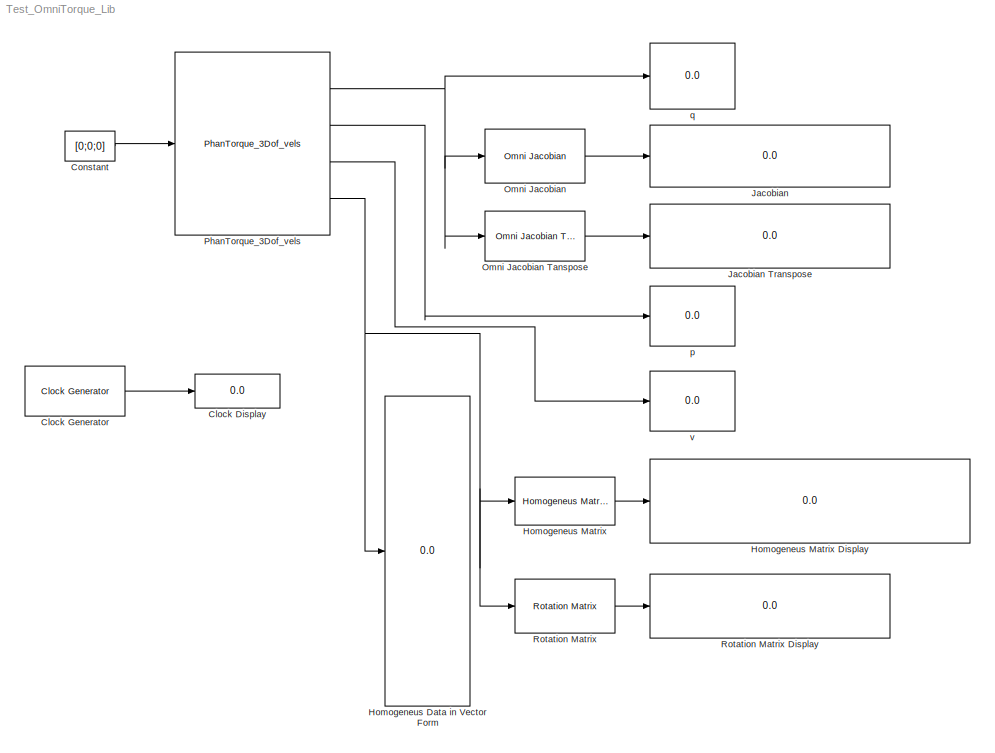
MODEL Test_OmniTorque_Lib
KIND model
BLOCK [Display] Clock Display
  Decimation = 1
  Lockdown = off
  Ports = [1]
  SID = 83
BLOCK [Reference] Clock Generator  REF=PhanTorque_3Dof_Library_32Bits/Clock Generator
  Ports = [0, 1]
  SID = 104
  SourceBlock = PhanTorque_3Dof_Library_32Bits/Clock Generator
BLOCK [Constant] Constant
  SID = 105
  Value = [0;0;0]
BLOCK [Display] Homogeneus Data in Vector Form
  Decimation = 1
  Lockdown = off
  Ports = [1]
  SID = 11
BLOCK [Reference] Homogeneus Matrix  REF=PhanTorque_3Dof_Library_32Bits/Homogeneus Matrix
  FunctionWithSeparateData = off
  GeneratePreprocessorConditionals = off
  Ports = [1, 1]
  RTWMemSecDataConstants = Inherit from model
  RTWMemSecDataInternal = Inherit from model
  RTWMemSecDataParameters = Inherit from model
  RTWMemSecFuncExecute = Inherit from model
  RTWMemSecFuncInitTerm = Inherit from model
  SID = 100
  ShowPortLabels = FromPortIcon
  SourceBlock = PhanTorque_3Dof_Library_32Bits/Homogeneus Matrix
  SystemSampleTime = -1
BLOCK [Display] Homogeneus Matrix Display
  Decimation = 1
  Lockdown = off
  Ports = [1]
  SID = 78
BLOCK [Display] Jacobian
  Decimation = 1
  Lockdown = off
  Ports = [1]
  SID = 70
BLOCK [Display] Jacobian Transpose
  Decimation = 1
  Lockdown = off
  Ports = [1]
  SID = 72
BLOCK [Reference] Omni Jacobian  REF=PhanTorque_3Dof_Library_32Bits/Omni Jacobian
  FunctionWithSeparateData = off
  GeneratePreprocessorConditionals = off
  Ports = [1, 1]
  RTWMemSecDataConstants = Inherit from model
  RTWMemSecDataInternal = Inherit from model
  RTWMemSecDataParameters = Inherit from model
  RTWMemSecFuncExecute = Inherit from model
  RTWMemSecFuncInitTerm = Inherit from model
  SID = 102
  ShowPortLabels = FromPortIcon
  SourceBlock = PhanTorque_3Dof_Library_32Bits/Omni Jacobian
  SystemSampleTime = -1
BLOCK [Reference] Omni Jacobian Tanspose  REF=PhanTorque_3Dof_Library_32Bits/Omni Jacobian Tanspose
  FunctionWithSeparateData = off
  GeneratePreprocessorConditionals = off
  Ports = [1, 1]
  RTWMemSecDataConstants = Inherit from model
  RTWMemSecDataInternal = Inherit from model
  RTWMemSecDataParameters = Inherit from model
  RTWMemSecFuncExecute = Inherit from model
  RTWMemSecFuncInitTerm = Inherit from model
  SID = 103
  ShowPortLabels = FromPortIcon
  SourceBlock = PhanTorque_3Dof_Library_32Bits/Omni Jacobian Tanspose
  SystemSampleTime = -1
BLOCK [Reference] PhanTorque_3Dof_vels  REF=PhanTorque_3Dof_Library_32Bits/PhanTorque_3Dof_vels
  Haptic_Name = 'Default PHANToM'
  Ports = [1, 4]
  SID = 106
  SourceBlock = PhanTorque_3Dof_Library_32Bits/PhanTorque_3Dof_vels
BLOCK [Reference] Rotation Matrix  REF=PhanTorque_3Dof_Library_32Bits/Rotation Matrix
  FunctionWithSeparateData = off
  GeneratePreprocessorConditionals = off
  Ports = [1, 1]
  RTWMemSecDataConstants = Inherit from model
  RTWMemSecDataInternal = Inherit from model
  RTWMemSecDataParameters = Inherit from model
  RTWMemSecFuncExecute = Inherit from model
  RTWMemSecFuncInitTerm = Inherit from model
  SID = 99
  ShowPortLabels = FromPortIcon
  SourceBlock = PhanTorque_3Dof_Library_32Bits/Rotation Matrix
  SystemSampleTime = -1
BLOCK [Display] Rotation Matrix Display
  Decimation = 1
  Lockdown = off
  Ports = [1]
  SID = 79
BLOCK [Display] p
  Decimation = 1
  Lockdown = off
  Ports = [1]
  SID = 24
BLOCK [Display] q
  Decimation = 1
  Lockdown = off
  Ports = [1]
  SID = 7
BLOCK [Display] v
  Decimation = 1
  Lockdown = off
  Ports = [1]
  SID = 107
LINE Clock Generator:1 -> Clock Display:1
LINE Constant:1 -> PhanTorque_3Dof_vels:1
LINE Homogeneus Matrix:1 -> Homogeneus Matrix Display:1
LINE Omni Jacobian Tanspose:1 -> Jacobian Transpose:1
LINE Omni Jacobian:1 -> Jacobian:1
NET PhanTorque_3Dof_vels:1 -> Omni Jacobian Tanspose:1, Omni Jacobian:1, q:1
LINE PhanTorque_3Dof_vels:2 -> p:1
LINE PhanTorque_3Dof_vels:3 -> v:1
NET PhanTorque_3Dof_vels:4 -> Homogeneus Data in Vector Form:1, Homogeneus Matrix:1, Rotation Matrix:1
LINE Rotation Matrix:1 -> Rotation Matrix Display:1
note: NET lines group one-source signal fan-out (src -> all destinations, sorted); 1:1 wires keep LINE
